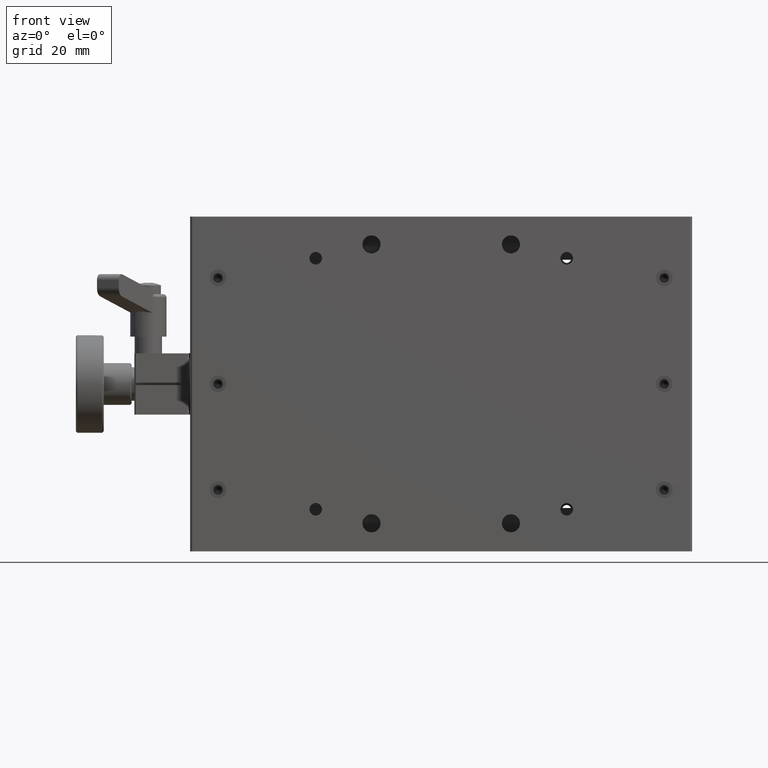
[diagram: clean part render]
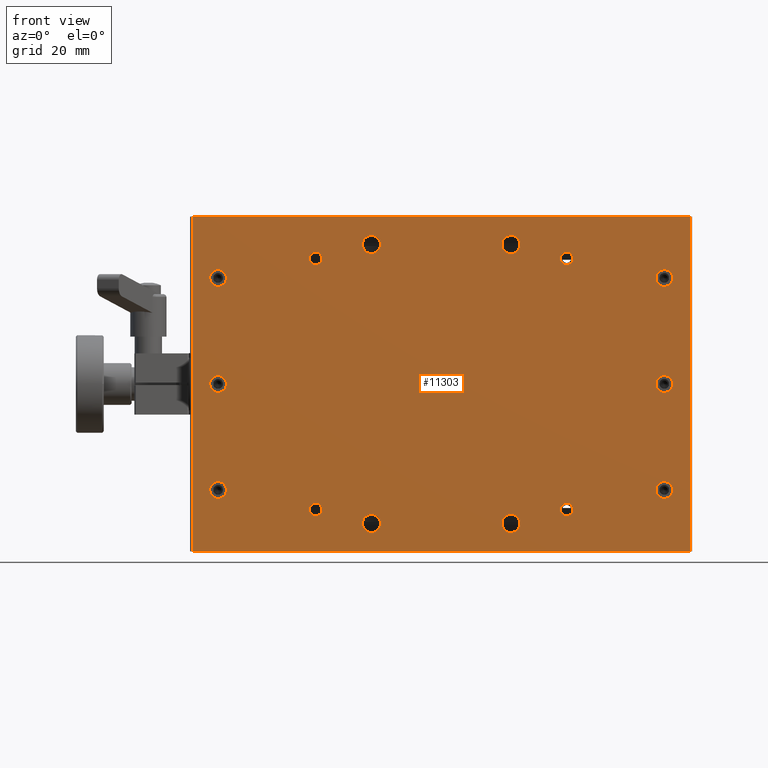
[diagram: same view with one face highlighted and labeled with its STEP entity id]
A machine part, front view. The second image highlights one B-rep face of the part: STEP entity #11303.
In plain terms, the highlighted planar face has unit normal (0, -1, 0).
Its self-contained STEP definition (entity closure, byte-faithful):
#165 = VERTEX_POINT ( 'NONE', #6631 ) ;
#173 = DIRECTION ( 'NONE',  ( 0.000000000000000000, 0.000000000000000000, -1.000000000000000000 ) ) ;
#493 = CARTESIAN_POINT ( 'NONE',  ( 170.0000000000000000, 0.000000000000000000, -98.00000000000000000 ) ) ;
#565 = VERTEX_POINT ( 'NONE', #10498 ) ;
#611 = EDGE_CURVE ( 'NONE', #565, #565, #11197, .T. ) ;
#614 = DIRECTION ( 'NONE',  ( 0.000000000000000000, 1.000000000000000000, 0.000000000000000000 ) ) ;
#688 = CARTESIAN_POINT ( 'NONE',  ( 170.0000000000000000, 0.000000000000000000, -22.00000000000000000 ) ) ;
#704 = DIRECTION ( 'NONE',  ( 0.000000000000000000, 1.000000000000000000, 0.000000000000000000 ) ) ;
#731 = VECTOR ( 'NONE', #16617, 1000.000000000000000 ) ;
#922 = DIRECTION ( 'NONE',  ( 0.000000000000000000, 1.000000000000000000, 0.000000000000000000 ) ) ;
#939 = CARTESIAN_POINT ( 'NONE',  ( 10.00000000000000000, 0.000000000000000000, -60.00000000000000000 ) ) ;
#981 = ORIENTED_EDGE ( 'NONE', *, *, #9051, .T. ) ;
#1084 = CARTESIAN_POINT ( 'NONE',  ( 0.7099999999999999645, 0.000000000000000000, 0.000000000000000000 ) ) ;
#1167 = DIRECTION ( 'NONE',  ( -1.000000000000000000, -0.000000000000000000, -0.000000000000000000 ) ) ;
#1268 = FACE_BOUND ( 'NONE', #2547, .T. ) ;
#1294 = CARTESIAN_POINT ( 'NONE',  ( 170.0000000000000000, 0.000000000000000000, -19.00000000000000000 ) ) ;
#1336 = CARTESIAN_POINT ( 'NONE',  ( 10.00000000000000000, 0.000000000000000000, -95.00000000000000000 ) ) ;
#1413 = ORIENTED_EDGE ( 'NONE', *, *, #611, .T. ) ;
#1436 = CARTESIAN_POINT ( 'NONE',  ( 0.7099999999999999645, 0.000000000000000000, -120.0000000000000000 ) ) ;
#1551 = CIRCLE ( 'NONE', #5587, 2.249999999999998668 ) ;
#1636 = EDGE_LOOP ( 'NONE', ( #11422 ) ) ;
#1654 = EDGE_CURVE ( 'NONE', #2053, #2053, #9400, .T. ) ;
#1786 = CARTESIAN_POINT ( 'NONE',  ( 0.7099999999999998535, -2.981555974335136700E-16, -120.0000000000000000 ) ) ;
#1924 = VERTEX_POINT ( 'NONE', #1786 ) ;
#2053 = VERTEX_POINT ( 'NONE', #7351 ) ;
#2273 = CARTESIAN_POINT ( 'NONE',  ( 45.00000000000000000, 0.000000000000000000, -15.00000000000000000 ) ) ;
#2324 = EDGE_LOOP ( 'NONE', ( #12163 ) ) ;
#2342 = DIRECTION ( 'NONE',  ( 0.000000000000000000, 1.000000000000000000, 0.000000000000000000 ) ) ;
#2455 = FACE_BOUND ( 'NONE', #1636, .T. ) ;
#2483 = EDGE_CURVE ( 'NONE', #14945, #14945, #16508, .T. ) ;
#2506 = AXIS2_PLACEMENT_3D ( 'NONE', #10909, #7682, #10223 ) ;
#2520 = LINE ( 'NONE', #1084, #7338 ) ;
#2547 = EDGE_LOOP ( 'NONE', ( #10918 ) ) ;
#2607 = AXIS2_PLACEMENT_3D ( 'NONE', #12709, #6494, #9096 ) ;
#2674 = EDGE_CURVE ( 'NONE', #12933, #15725, #2520, .T. ) ;
#2687 = CARTESIAN_POINT ( 'NONE',  ( 10.00000000000000000, 0.000000000000000000, -56.99999999999999289 ) ) ;
#2721 = DIRECTION ( 'NONE',  ( 0.000000000000000000, 0.000000000000000000, 1.000000000000000000 ) ) ;
#2821 = EDGE_LOOP ( 'NONE', ( #13661 ) ) ;
#2980 = DIRECTION ( 'NONE',  ( 0.000000000000000000, 0.000000000000000000, 1.000000000000000000 ) ) ;
#3019 = FACE_BOUND ( 'NONE', #10497, .T. ) ;
#3102 = ORIENTED_EDGE ( 'NONE', *, *, #11228, .T. ) ;
#3140 = VERTEX_POINT ( 'NONE', #16104 ) ;
#3370 = ORIENTED_EDGE ( 'NONE', *, *, #2483, .T. ) ;
#3585 = EDGE_LOOP ( 'NONE', ( #6044 ) ) ;
#3719 = EDGE_CURVE ( 'NONE', #1924, #12884, #6546, .T. ) ;
#3797 = DIRECTION ( 'NONE',  ( 0.000000000000000000, 1.000000000000000000, 0.000000000000000000 ) ) ;
#3980 = CARTESIAN_POINT ( 'NONE',  ( 115.0000000000000000, 0.000000000000000000, -110.0000000000000000 ) ) ;
#4013 = AXIS2_PLACEMENT_3D ( 'NONE', #15951, #4426, #13913 ) ;
#4103 = DIRECTION ( 'NONE',  ( 0.000000000000000000, 0.000000000000000000, 1.000000000000000000 ) ) ;
#4262 = AXIS2_PLACEMENT_3D ( 'NONE', #939, #10032, #4726 ) ;
#4426 = DIRECTION ( 'NONE',  ( 0.000000000000000000, 1.000000000000000000, 0.000000000000000000 ) ) ;
#4519 = EDGE_CURVE ( 'NONE', #15508, #15508, #6444, .T. ) ;
#4640 = CARTESIAN_POINT ( 'NONE',  ( 170.0000000000000000, 0.000000000000000000, -60.00000000000000000 ) ) ;
#4726 = DIRECTION ( 'NONE',  ( 0.000000000000000000, 0.000000000000000000, 1.000000000000000000 ) ) ;
#4795 = CARTESIAN_POINT ( 'NONE',  ( 135.0000000000000000, 0.000000000000000000, -12.75000000000000178 ) ) ;
#4976 = FACE_BOUND ( 'NONE', #7553, .T. ) ;
#5024 = ORIENTED_EDGE ( 'NONE', *, *, #1654, .T. ) ;
#5128 = EDGE_LOOP ( 'NONE', ( #12009 ) ) ;
#5171 = EDGE_CURVE ( 'NONE', #3140, #3140, #8083, .T. ) ;
#5368 = AXIS2_PLACEMENT_3D ( 'NONE', #688, #8000, #10617 ) ;
#5569 = ORIENTED_EDGE ( 'NONE', *, *, #12210, .T. ) ;
#5586 = CARTESIAN_POINT ( 'NONE',  ( 45.00000000000000000, 0.000000000000000000, -107.2500000000000000 ) ) ;
#5587 = AXIS2_PLACEMENT_3D ( 'NONE', #2273, #7246, #6151 ) ;
#5625 = DIRECTION ( 'NONE',  ( 0.000000000000000000, 1.000000000000000000, 0.000000000000000000 ) ) ;
#5799 = EDGE_CURVE ( 'NONE', #8370, #8370, #11652, .T. ) ;
#6044 = ORIENTED_EDGE ( 'NONE', *, *, #12680, .T. ) ;
#6124 = EDGE_LOOP ( 'NONE', ( #3370 ) ) ;
#6151 = DIRECTION ( 'NONE',  ( 0.000000000000000000, 0.000000000000000000, 1.000000000000000000 ) ) ;
#6364 = LINE ( 'NONE', #11592, #6837 ) ;
#6409 = FACE_BOUND ( 'NONE', #6124, .T. ) ;
#6444 = CIRCLE ( 'NONE', #8059, 2.250000000000001776 ) ;
#6468 = CARTESIAN_POINT ( 'NONE',  ( 0.7099999999999999645, 0.000000000000000000, -120.0000000000000000 ) ) ;
#6494 = DIRECTION ( 'NONE',  ( 0.000000000000000000, 1.000000000000000000, 0.000000000000000000 ) ) ;
#6522 = EDGE_LOOP ( 'NONE', ( #1413 ) ) ;
#6546 = LINE ( 'NONE', #6468, #15523 ) ;
#6572 = FACE_BOUND ( 'NONE', #5128, .T. ) ;
#6631 = CARTESIAN_POINT ( 'NONE',  ( 45.00000000000000000, 0.000000000000000000, -12.75000000000000178 ) ) ;
#6700 = EDGE_CURVE ( 'NONE', #12884, #12933, #6364, .T. ) ;
#6837 = VECTOR ( 'NONE', #14191, 1000.000000000000000 ) ;
#7246 = DIRECTION ( 'NONE',  ( 0.000000000000000000, 1.000000000000000000, 0.000000000000000000 ) ) ;
#7338 = VECTOR ( 'NONE', #1167, 1000.000000000000000 ) ;
#7351 = CARTESIAN_POINT ( 'NONE',  ( 115.0000000000000000, 0.000000000000000000, -6.750000000000000888 ) ) ;
#7521 = ORIENTED_EDGE ( 'NONE', *, *, #5799, .T. ) ;
#7553 = EDGE_LOOP ( 'NONE', ( #5569 ) ) ;
#7682 = DIRECTION ( 'NONE',  ( 0.000000000000000000, 1.000000000000000000, 0.000000000000000000 ) ) ;
#7915 = AXIS2_PLACEMENT_3D ( 'NONE', #13794, #922, #13718 ) ;
#7978 = VERTEX_POINT ( 'NONE', #2687 ) ;
#8000 = DIRECTION ( 'NONE',  ( 0.000000000000000000, 1.000000000000000000, 0.000000000000000000 ) ) ;
#8014 = ORIENTED_EDGE ( 'NONE', *, *, #10620, .T. ) ;
#8059 = AXIS2_PLACEMENT_3D ( 'NONE', #14390, #3797, #173 ) ;
#8083 = CIRCLE ( 'NONE', #13182, 3.000000000000002665 ) ;
#8153 = DIRECTION ( 'NONE',  ( 0.000000000000000000, -0.000000000000000000, -1.000000000000000000 ) ) ;
#8265 = CIRCLE ( 'NONE', #2607, 2.250000000000015987 ) ;
#8279 = AXIS2_PLACEMENT_3D ( 'NONE', #8435, #614, #15750 ) ;
#8370 = VERTEX_POINT ( 'NONE', #13496 ) ;
#8435 = CARTESIAN_POINT ( 'NONE',  ( 10.00000000000000000, 0.000000000000000000, -98.00000000000000000 ) ) ;
#8575 = AXIS2_PLACEMENT_3D ( 'NONE', #4640, #2342, #14836 ) ;
#8633 = LINE ( 'NONE', #11170, #731 ) ;
#8887 = ORIENTED_EDGE ( 'NONE', *, *, #3719, .T. ) ;
#9009 = DIRECTION ( 'NONE',  ( 0.000000000000000000, -1.000000000000000000, 0.000000000000000000 ) ) ;
#9051 = EDGE_CURVE ( 'NONE', #10020, #10020, #14001, .T. ) ;
#9060 = CIRCLE ( 'NONE', #4262, 3.000000000000002665 ) ;
#9096 = DIRECTION ( 'NONE',  ( 0.000000000000000000, 0.000000000000000000, -1.000000000000000000 ) ) ;
#9400 = CIRCLE ( 'NONE', #4013, 3.249999999999999556 ) ;
#9417 = FACE_BOUND ( 'NONE', #3585, .T. ) ;
#9790 = EDGE_CURVE ( 'NONE', #15725, #1924, #8633, .T. ) ;
#10020 = VERTEX_POINT ( 'NONE', #4795 ) ;
#10032 = DIRECTION ( 'NONE',  ( 0.000000000000000000, 1.000000000000000000, 0.000000000000000000 ) ) ;
#10047 = ORIENTED_EDGE ( 'NONE', *, *, #6700, .T. ) ;
#10138 = CARTESIAN_POINT ( 'NONE',  ( 170.0000000000000000, 0.000000000000000000, -56.99999999999999289 ) ) ;
#10201 = PLANE ( 'NONE',  #12547 ) ;
#10223 = DIRECTION ( 'NONE',  ( 0.000000000000000000, 0.000000000000000000, 1.000000000000000000 ) ) ;
#10232 = VERTEX_POINT ( 'NONE', #15358 ) ;
#10284 = FACE_BOUND ( 'NONE', #12519, .T. ) ;
#10360 = FACE_BOUND ( 'NONE', #2324, .T. ) ;
#10497 = EDGE_LOOP ( 'NONE', ( #7521 ) ) ;
#10498 = CARTESIAN_POINT ( 'NONE',  ( 115.0000000000000000, 0.000000000000000000, -106.7500000000000000 ) ) ;
#10522 = VERTEX_POINT ( 'NONE', #15643 ) ;
#10576 = EDGE_CURVE ( 'NONE', #11695, #11695, #13908, .T. ) ;
#10617 = DIRECTION ( 'NONE',  ( 0.000000000000000000, 0.000000000000000000, 1.000000000000000000 ) ) ;
#10620 = EDGE_CURVE ( 'NONE', #165, #165, #1551, .T. ) ;
#10812 = CARTESIAN_POINT ( 'NONE',  ( 65.00000000000000000, 0.000000000000000000, -10.00000000000000000 ) ) ;
#10909 = CARTESIAN_POINT ( 'NONE',  ( 65.00000000000000000, 0.000000000000000000, -110.0000000000000000 ) ) ;
#10918 = ORIENTED_EDGE ( 'NONE', *, *, #12874, .T. ) ;
#11137 = EDGE_CURVE ( 'NONE', #7978, #7978, #9060, .T. ) ;
#11170 = CARTESIAN_POINT ( 'NONE',  ( 0.7099999999999999645, 0.000000000000000000, -120.0000000000000000 ) ) ;
#11197 = CIRCLE ( 'NONE', #15751, 3.250000000000002665 ) ;
#11228 = EDGE_CURVE ( 'NONE', #10522, #10522, #8265, .T. ) ;
#11303 = ADVANCED_FACE ( 'NONE', ( #14235, #11707, #12968, #9417, #1268, #2455, #6572, #10360, #6409, #10284, #14555, #14062, #3019, #16498, #4976 ), #10201, .T. ) ;
#11422 = ORIENTED_EDGE ( 'NONE', *, *, #5171, .T. ) ;
#11431 = DIRECTION ( 'NONE',  ( 1.000000000000000000, 0.000000000000000000, 0.000000000000000000 ) ) ;
#11592 = CARTESIAN_POINT ( 'NONE',  ( 179.2899999999999920, 0.000000000000000000, -120.0000000000000000 ) ) ;
#11652 = CIRCLE ( 'NONE', #2506, 3.250000000000002665 ) ;
#11695 = VERTEX_POINT ( 'NONE', #1336 ) ;
#11707 = FACE_BOUND ( 'NONE', #13231, .T. ) ;
#11776 = CIRCLE ( 'NONE', #16607, 3.249999999999999556 ) ;
#11858 = AXIS2_PLACEMENT_3D ( 'NONE', #13289, #14310, #14473 ) ;
#12009 = ORIENTED_EDGE ( 'NONE', *, *, #10576, .T. ) ;
#12163 = ORIENTED_EDGE ( 'NONE', *, *, #11137, .T. ) ;
#12210 = EDGE_CURVE ( 'NONE', #10232, #10232, #11776, .T. ) ;
#12331 = CIRCLE ( 'NONE', #5368, 2.999999999999999112 ) ;
#12519 = EDGE_LOOP ( 'NONE', ( #981 ) ) ;
#12547 = AXIS2_PLACEMENT_3D ( 'NONE', #1436, #9009, #8153 ) ;
#12572 = VERTEX_POINT ( 'NONE', #1294 ) ;
#12578 = ORIENTED_EDGE ( 'NONE', *, *, #9790, .T. ) ;
#12680 = EDGE_CURVE ( 'NONE', #12572, #12572, #12331, .T. ) ;
#12709 = CARTESIAN_POINT ( 'NONE',  ( 135.0000000000000000, 0.000000000000000000, -105.0000000000000000 ) ) ;
#12874 = EDGE_CURVE ( 'NONE', #16520, #16520, #13682, .T. ) ;
#12884 = VERTEX_POINT ( 'NONE', #15147 ) ;
#12933 = VERTEX_POINT ( 'NONE', #13871 ) ;
#12968 = FACE_OUTER_BOUND ( 'NONE', #14753, .T. ) ;
#13182 = AXIS2_PLACEMENT_3D ( 'NONE', #493, #5625, #4103 ) ;
#13231 = EDGE_LOOP ( 'NONE', ( #3102 ) ) ;
#13289 = CARTESIAN_POINT ( 'NONE',  ( 135.0000000000000000, 0.000000000000000000, -15.00000000000000000 ) ) ;
#13496 = CARTESIAN_POINT ( 'NONE',  ( 65.00000000000000000, 0.000000000000000000, -106.7500000000000000 ) ) ;
#13661 = ORIENTED_EDGE ( 'NONE', *, *, #4519, .T. ) ;
#13682 = CIRCLE ( 'NONE', #8575, 3.000000000000002665 ) ;
#13718 = DIRECTION ( 'NONE',  ( 0.000000000000000000, 0.000000000000000000, 1.000000000000000000 ) ) ;
#13794 = CARTESIAN_POINT ( 'NONE',  ( 10.00000000000000000, 0.000000000000000000, -22.00000000000000000 ) ) ;
#13871 = CARTESIAN_POINT ( 'NONE',  ( 179.2900000000000205, 6.898236322439020384E-15, 0.000000000000000000 ) ) ;
#13908 = CIRCLE ( 'NONE', #8279, 3.000000000000002665 ) ;
#13913 = DIRECTION ( 'NONE',  ( 0.000000000000000000, 0.000000000000000000, 1.000000000000000000 ) ) ;
#14001 = CIRCLE ( 'NONE', #11858, 2.249999999999998668 ) ;
#14062 = FACE_BOUND ( 'NONE', #15389, .T. ) ;
#14191 = DIRECTION ( 'NONE',  ( -0.000000000000000000, 0.000000000000000000, 1.000000000000000000 ) ) ;
#14235 = FACE_BOUND ( 'NONE', #2821, .T. ) ;
#14310 = DIRECTION ( 'NONE',  ( 0.000000000000000000, 1.000000000000000000, 0.000000000000000000 ) ) ;
#14332 = DIRECTION ( 'NONE',  ( 0.000000000000000000, 1.000000000000000000, 0.000000000000000000 ) ) ;
#14390 = CARTESIAN_POINT ( 'NONE',  ( 45.00000000000000000, 0.000000000000000000, -105.0000000000000000 ) ) ;
#14473 = DIRECTION ( 'NONE',  ( 0.000000000000000000, 0.000000000000000000, 1.000000000000000000 ) ) ;
#14555 = FACE_BOUND ( 'NONE', #16396, .T. ) ;
#14753 = EDGE_LOOP ( 'NONE', ( #8887, #10047, #15914, #12578 ) ) ;
#14836 = DIRECTION ( 'NONE',  ( 0.000000000000000000, 0.000000000000000000, 1.000000000000000000 ) ) ;
#14945 = VERTEX_POINT ( 'NONE', #15953 ) ;
#15147 = CARTESIAN_POINT ( 'NONE',  ( 179.2900000000000205, 6.898236322439020384E-15, -120.0000000000000000 ) ) ;
#15351 = CARTESIAN_POINT ( 'NONE',  ( 0.7099999999999999645, -1.897353801849631773E-16, 0.000000000000000000 ) ) ;
#15358 = CARTESIAN_POINT ( 'NONE',  ( 65.00000000000000000, 0.000000000000000000, -6.750000000000000888 ) ) ;
#15389 = EDGE_LOOP ( 'NONE', ( #5024 ) ) ;
#15508 = VERTEX_POINT ( 'NONE', #5586 ) ;
#15523 = VECTOR ( 'NONE', #11431, 1000.000000000000000 ) ;
#15643 = CARTESIAN_POINT ( 'NONE',  ( 135.0000000000000000, 0.000000000000000000, -107.2500000000000142 ) ) ;
#15725 = VERTEX_POINT ( 'NONE', #15351 ) ;
#15750 = DIRECTION ( 'NONE',  ( 0.000000000000000000, 0.000000000000000000, 1.000000000000000000 ) ) ;
#15751 = AXIS2_PLACEMENT_3D ( 'NONE', #3980, #14332, #2721 ) ;
#15914 = ORIENTED_EDGE ( 'NONE', *, *, #2674, .T. ) ;
#15951 = CARTESIAN_POINT ( 'NONE',  ( 115.0000000000000000, 0.000000000000000000, -10.00000000000000000 ) ) ;
#15953 = CARTESIAN_POINT ( 'NONE',  ( 10.00000000000000000, 0.000000000000000000, -19.00000000000000000 ) ) ;
#16104 = CARTESIAN_POINT ( 'NONE',  ( 170.0000000000000000, 0.000000000000000000, -95.00000000000000000 ) ) ;
#16396 = EDGE_LOOP ( 'NONE', ( #8014 ) ) ;
#16498 = FACE_BOUND ( 'NONE', #6522, .T. ) ;
#16508 = CIRCLE ( 'NONE', #7915, 2.999999999999999112 ) ;
#16520 = VERTEX_POINT ( 'NONE', #10138 ) ;
#16607 = AXIS2_PLACEMENT_3D ( 'NONE', #10812, #704, #2980 ) ;
#16617 = DIRECTION ( 'NONE',  ( 0.000000000000000000, -0.000000000000000000, -1.000000000000000000 ) ) ;